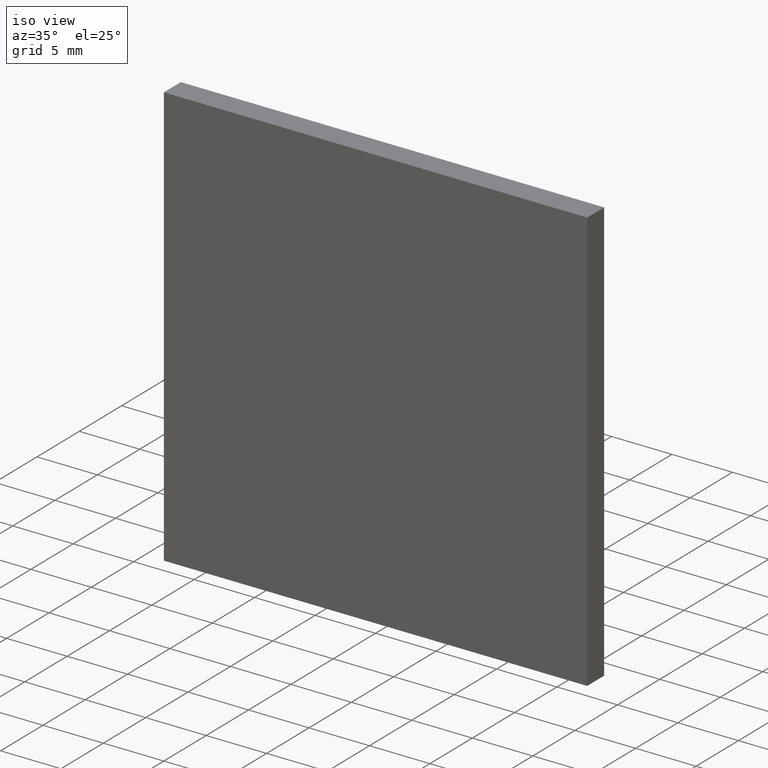
[diagram: clean part render]
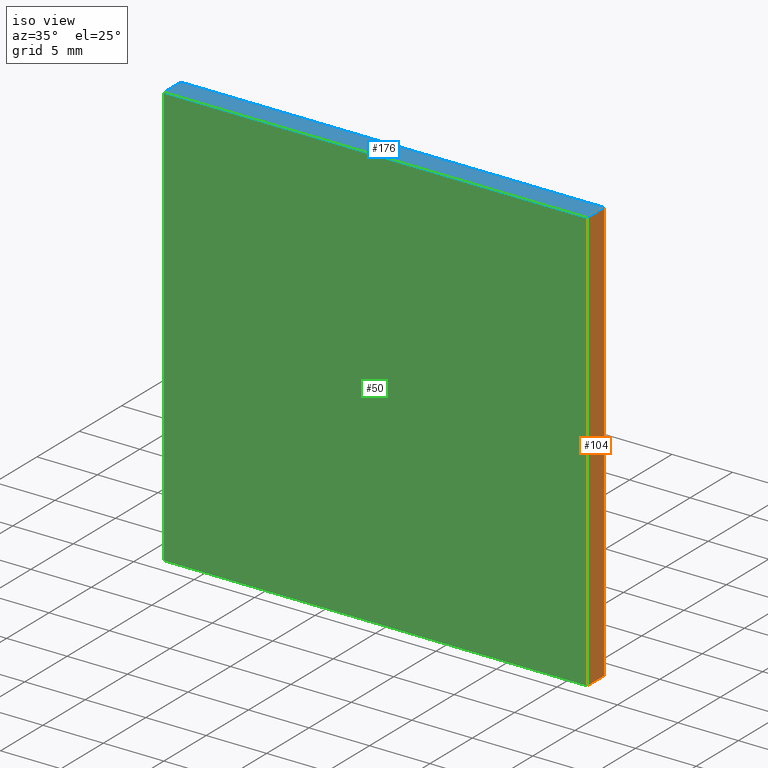
[diagram: same view with three faces highlighted in distinct colors, each labeled with its STEP entity id]
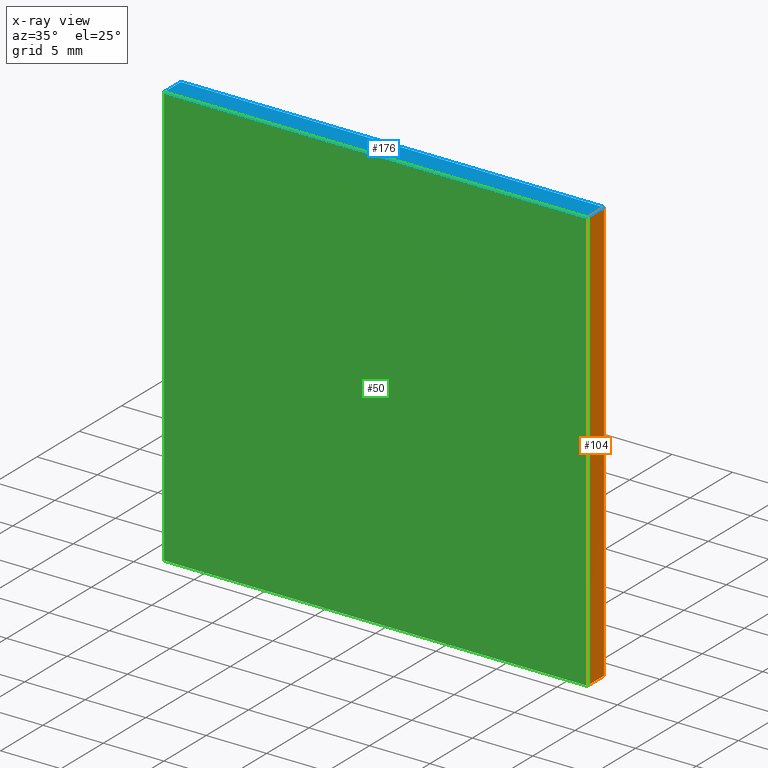
[diagram: x-ray of the same camera — body ghosted, the three highlighted faces saturated]
A machine part, iso view with three faces highlighted in distinct colors.
The next image is the same camera in x-ray (body ghosted, the three faces saturated) — at least one of them is partly hidden behind the body in this view.
Their STEP definitions:

[orange] entity #104 — the highlighted planar face has unit normal (-1, 0, 0).
#1 = LINE ( 'NONE', #147, #58 ) ;
#2 = DIRECTION ( 'NONE',  ( -0.0000000000000000000, -0.0000000000000000000, -1.000000000000000000 ) ) ;
#3 = DIRECTION ( 'NONE',  ( 0.0000000000000000000, 0.0000000000000000000, 1.000000000000000000 ) ) ;
#15 = LINE ( 'NONE', #84, #87 ) ;
#21 = ORIENTED_EDGE ( 'NONE', *, *, #76, .F. ) ;
#28 = VERTEX_POINT ( 'NONE', #180 ) ;
#33 = VERTEX_POINT ( 'NONE', #73 ) ;
#35 = ORIENTED_EDGE ( 'NONE', *, *, #132, .F. ) ;
#38 = PLANE ( 'NONE',  #187 ) ;
#39 = VERTEX_POINT ( 'NONE', #191 ) ;
#40 = VECTOR ( 'NONE', #165, 1000.000000000000000 ) ;
#43 = VERTEX_POINT ( 'NONE', #72 ) ;
#52 = EDGE_CURVE ( 'NONE', #33, #28, #91, .T. ) ;
#54 = CARTESIAN_POINT ( 'NONE',  ( 17.50000000000000000, 2.000000000000000000, 17.50000000000000000 ) ) ;
#58 = VECTOR ( 'NONE', #2, 1000.000000000000000 ) ;
#61 = EDGE_CURVE ( 'NONE', #28, #39, #96, .T. ) ;
#66 = EDGE_LOOP ( 'NONE', ( #89, #21, #35, #195 ) ) ;
#72 = CARTESIAN_POINT ( 'NONE',  ( 17.50000000000000000, 2.000000000000000000, -17.50000000000000000 ) ) ;
#73 = CARTESIAN_POINT ( 'NONE',  ( 17.50000000000000000, 2.000000000000000000, 17.50000000000000000 ) ) ;
#76 = EDGE_CURVE ( 'NONE', #43, #39, #15, .T. ) ;
#84 = CARTESIAN_POINT ( 'NONE',  ( 17.50000000000000000, 2.000000000000000000, -17.50000000000000000 ) ) ;
#87 = VECTOR ( 'NONE', #182, 1000.000000000000000 ) ;
#89 = ORIENTED_EDGE ( 'NONE', *, *, #61, .T. ) ;
#91 = LINE ( 'NONE', #54, #100 ) ;
#96 = LINE ( 'NONE', #124, #40 ) ;
#100 = VECTOR ( 'NONE', #174, 1000.000000000000000 ) ;
#104 = ADVANCED_FACE ( 'NONE', ( #160 ), #38, .F. ) ;
#119 = DIRECTION ( 'NONE',  ( -1.000000000000000000, 0.0000000000000000000, 0.0000000000000000000 ) ) ;
#124 = CARTESIAN_POINT ( 'NONE',  ( 17.50000000000000000, 0.0000000000000000000, -17.50000000000000000 ) ) ;
#132 = EDGE_CURVE ( 'NONE', #33, #43, #1, .T. ) ;
#136 = CARTESIAN_POINT ( 'NONE',  ( 17.50000000000000000, 2.000000000000000000, -17.50000000000000000 ) ) ;
#147 = CARTESIAN_POINT ( 'NONE',  ( 17.50000000000000000, 2.000000000000000000, -17.50000000000000000 ) ) ;
#160 = FACE_OUTER_BOUND ( 'NONE', #66, .T. ) ;
#165 = DIRECTION ( 'NONE',  ( -0.0000000000000000000, -0.0000000000000000000, -1.000000000000000000 ) ) ;
#174 = DIRECTION ( 'NONE',  ( -0.0000000000000000000, -1.000000000000000000, -0.0000000000000000000 ) ) ;
#180 = CARTESIAN_POINT ( 'NONE',  ( 17.50000000000000000, 0.0000000000000000000, 17.50000000000000000 ) ) ;
#182 = DIRECTION ( 'NONE',  ( -0.0000000000000000000, -1.000000000000000000, -0.0000000000000000000 ) ) ;
#187 = AXIS2_PLACEMENT_3D ( 'NONE', #136, #119, #3 ) ;
#191 = CARTESIAN_POINT ( 'NONE',  ( 17.50000000000000000, 0.0000000000000000000, -17.50000000000000000 ) ) ;
#195 = ORIENTED_EDGE ( 'NONE', *, *, #52, .T. ) ;

[blue] entity #176 — the highlighted planar face has unit normal (0, 0, -1).
#13 = DIRECTION ( 'NONE',  ( 1.000000000000000000, 0.0000000000000000000, 0.0000000000000000000 ) ) ;
#18 = DIRECTION ( 'NONE',  ( 1.000000000000000000, 0.0000000000000000000, 0.0000000000000000000 ) ) ;
#20 = LINE ( 'NONE', #36, #140 ) ;
#27 = DIRECTION ( 'NONE',  ( 0.0000000000000000000, 0.0000000000000000000, -1.000000000000000000 ) ) ;
#28 = VERTEX_POINT ( 'NONE', #180 ) ;
#33 = VERTEX_POINT ( 'NONE', #73 ) ;
#36 = CARTESIAN_POINT ( 'NONE',  ( -17.50000000000000000, 2.000000000000000000, 17.50000000000000000 ) ) ;
#44 = VECTOR ( 'NONE', #18, 1000.000000000000000 ) ;
#52 = EDGE_CURVE ( 'NONE', #33, #28, #91, .T. ) ;
#54 = CARTESIAN_POINT ( 'NONE',  ( 17.50000000000000000, 2.000000000000000000, 17.50000000000000000 ) ) ;
#57 = ORIENTED_EDGE ( 'NONE', *, *, #101, .F. ) ;
#73 = CARTESIAN_POINT ( 'NONE',  ( 17.50000000000000000, 2.000000000000000000, 17.50000000000000000 ) ) ;
#74 = ORIENTED_EDGE ( 'NONE', *, *, #113, .T. ) ;
#85 = DIRECTION ( 'NONE',  ( -1.000000000000000000, 0.0000000000000000000, -0.0000000000000000000 ) ) ;
#91 = LINE ( 'NONE', #54, #100 ) ;
#93 = ORIENTED_EDGE ( 'NONE', *, *, #105, .T. ) ;
#98 = CARTESIAN_POINT ( 'NONE',  ( -17.50000000000000000, 0.0000000000000000000, 17.50000000000000000 ) ) ;
#99 = VECTOR ( 'NONE', #13, 1000.000000000000000 ) ;
#100 = VECTOR ( 'NONE', #174, 1000.000000000000000 ) ;
#101 = EDGE_CURVE ( 'NONE', #171, #33, #169, .T. ) ;
#105 = EDGE_CURVE ( 'NONE', #171, #129, #20, .T. ) ;
#108 = CARTESIAN_POINT ( 'NONE',  ( -17.50000000000000000, 2.000000000000000000, 17.50000000000000000 ) ) ;
#113 = EDGE_CURVE ( 'NONE', #129, #28, #150, .T. ) ;
#117 = CARTESIAN_POINT ( 'NONE',  ( -17.50000000000000000, 2.000000000000000000, 17.50000000000000000 ) ) ;
#127 = EDGE_LOOP ( 'NONE', ( #74, #153, #57, #93 ) ) ;
#129 = VERTEX_POINT ( 'NONE', #177 ) ;
#135 = PLANE ( 'NONE',  #188 ) ;
#139 = FACE_OUTER_BOUND ( 'NONE', #127, .T. ) ;
#140 = VECTOR ( 'NONE', #170, 1000.000000000000000 ) ;
#150 = LINE ( 'NONE', #98, #44 ) ;
#153 = ORIENTED_EDGE ( 'NONE', *, *, #52, .F. ) ;
#163 = CARTESIAN_POINT ( 'NONE',  ( -17.50000000000000000, 2.000000000000000000, 17.50000000000000000 ) ) ;
#169 = LINE ( 'NONE', #163, #99 ) ;
#170 = DIRECTION ( 'NONE',  ( -0.0000000000000000000, -1.000000000000000000, -0.0000000000000000000 ) ) ;
#171 = VERTEX_POINT ( 'NONE', #117 ) ;
#174 = DIRECTION ( 'NONE',  ( -0.0000000000000000000, -1.000000000000000000, -0.0000000000000000000 ) ) ;
#176 = ADVANCED_FACE ( 'NONE', ( #139 ), #135, .F. ) ;
#177 = CARTESIAN_POINT ( 'NONE',  ( -17.50000000000000000, 0.0000000000000000000, 17.50000000000000000 ) ) ;
#180 = CARTESIAN_POINT ( 'NONE',  ( 17.50000000000000000, 0.0000000000000000000, 17.50000000000000000 ) ) ;
#188 = AXIS2_PLACEMENT_3D ( 'NONE', #108, #27, #85 ) ;

[green] entity #50 — the highlighted planar face has unit normal (0, 1, 0).
#4 = DIRECTION ( 'NONE',  ( 0.0000000000000000000, 1.000000000000000000, 0.0000000000000000000 ) ) ;
#6 = EDGE_CURVE ( 'NONE', #17, #129, #75, .T. ) ;
#9 = PLANE ( 'NONE',  #168 ) ;
#17 = VERTEX_POINT ( 'NONE', #193 ) ;
#18 = DIRECTION ( 'NONE',  ( 1.000000000000000000, 0.0000000000000000000, 0.0000000000000000000 ) ) ;
#25 = ORIENTED_EDGE ( 'NONE', *, *, #61, .F. ) ;
#26 = VECTOR ( 'NONE', #162, 1000.000000000000000 ) ;
#28 = VERTEX_POINT ( 'NONE', #180 ) ;
#39 = VERTEX_POINT ( 'NONE', #191 ) ;
#40 = VECTOR ( 'NONE', #165, 1000.000000000000000 ) ;
#44 = VECTOR ( 'NONE', #18, 1000.000000000000000 ) ;
#48 = CARTESIAN_POINT ( 'NONE',  ( 0.0000000000000000000, 0.0000000000000000000, 0.0000000000000000000 ) ) ;
#50 = ADVANCED_FACE ( 'NONE', ( #115 ), #9, .F. ) ;
#61 = EDGE_CURVE ( 'NONE', #28, #39, #96, .T. ) ;
#68 = VECTOR ( 'NONE', #143, 1000.000000000000000 ) ;
#69 = CARTESIAN_POINT ( 'NONE',  ( -17.50000000000000000, 0.0000000000000000000, -17.50000000000000000 ) ) ;
#75 = LINE ( 'NONE', #128, #68 ) ;
#83 = ORIENTED_EDGE ( 'NONE', *, *, #113, .F. ) ;
#96 = LINE ( 'NONE', #124, #40 ) ;
#98 = CARTESIAN_POINT ( 'NONE',  ( -17.50000000000000000, 0.0000000000000000000, 17.50000000000000000 ) ) ;
#106 = LINE ( 'NONE', #69, #26 ) ;
#113 = EDGE_CURVE ( 'NONE', #129, #28, #150, .T. ) ;
#115 = FACE_OUTER_BOUND ( 'NONE', #178, .T. ) ;
#120 = EDGE_CURVE ( 'NONE', #39, #17, #106, .T. ) ;
#124 = CARTESIAN_POINT ( 'NONE',  ( 17.50000000000000000, 0.0000000000000000000, -17.50000000000000000 ) ) ;
#128 = CARTESIAN_POINT ( 'NONE',  ( -17.50000000000000000, 0.0000000000000000000, -17.50000000000000000 ) ) ;
#129 = VERTEX_POINT ( 'NONE', #177 ) ;
#141 = DIRECTION ( 'NONE',  ( 0.0000000000000000000, -0.0000000000000000000, 1.000000000000000000 ) ) ;
#143 = DIRECTION ( 'NONE',  ( 0.0000000000000000000, 0.0000000000000000000, 1.000000000000000000 ) ) ;
#150 = LINE ( 'NONE', #98, #44 ) ;
#154 = ORIENTED_EDGE ( 'NONE', *, *, #120, .F. ) ;
#156 = ORIENTED_EDGE ( 'NONE', *, *, #6, .F. ) ;
#162 = DIRECTION ( 'NONE',  ( -1.000000000000000000, -0.0000000000000000000, -0.0000000000000000000 ) ) ;
#165 = DIRECTION ( 'NONE',  ( -0.0000000000000000000, -0.0000000000000000000, -1.000000000000000000 ) ) ;
#168 = AXIS2_PLACEMENT_3D ( 'NONE', #48, #4, #141 ) ;
#177 = CARTESIAN_POINT ( 'NONE',  ( -17.50000000000000000, 0.0000000000000000000, 17.50000000000000000 ) ) ;
#178 = EDGE_LOOP ( 'NONE', ( #25, #83, #156, #154 ) ) ;
#180 = CARTESIAN_POINT ( 'NONE',  ( 17.50000000000000000, 0.0000000000000000000, 17.50000000000000000 ) ) ;
#191 = CARTESIAN_POINT ( 'NONE',  ( 17.50000000000000000, 0.0000000000000000000, -17.50000000000000000 ) ) ;
#193 = CARTESIAN_POINT ( 'NONE',  ( -17.50000000000000000, 0.0000000000000000000, -17.50000000000000000 ) ) ;